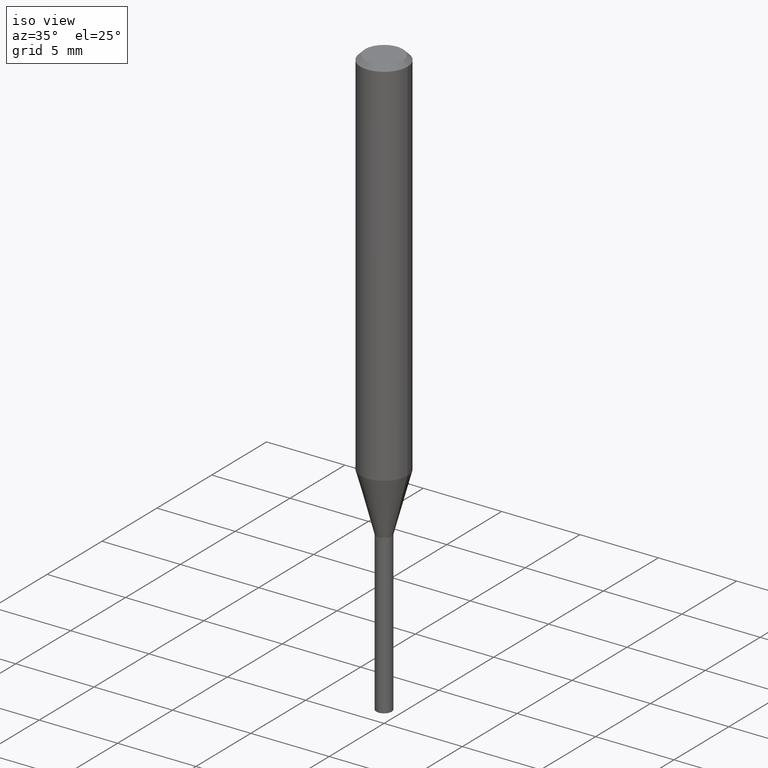
[diagram: clean part render]
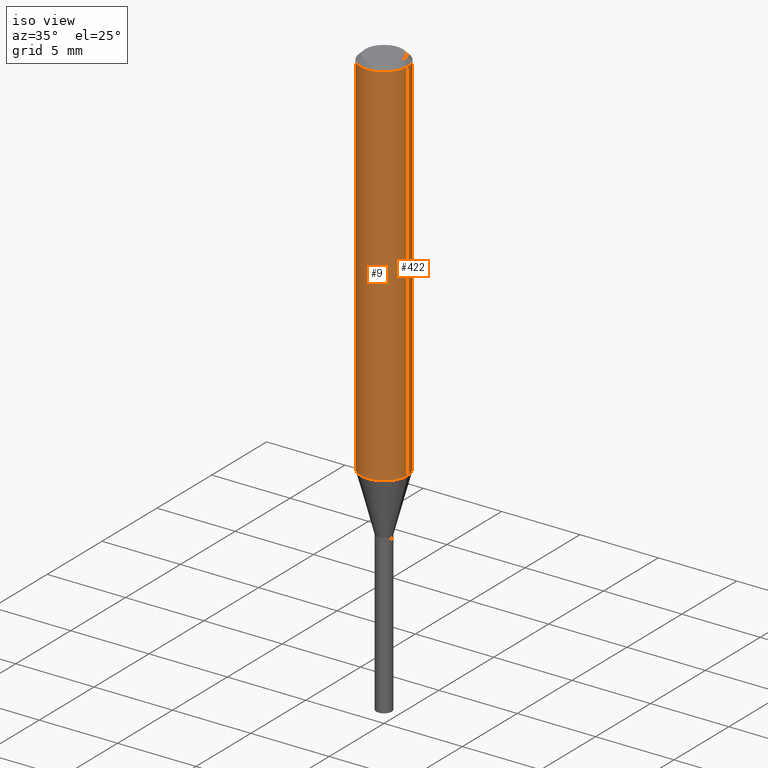
[diagram: same view with one multi-face feature highlighted, each face labeled with its STEP entity id]
A machine part, iso view. The highlighted faces form ONE feature: a constant-radius fillet chain: 2 tangent blend faces with common blend radius 1.4999 mm. The faces share edges in the B-rep.
Their STEP definitions:
[1] entity #422 (Cylinder):
#1 = VERTEX_POINT ( 'NONE', #330 ) ;
#25 = EDGE_CURVE ( 'NONE', #481, #386, #168, .T. ) ;
#40 = EDGE_CURVE ( 'NONE', #1, #348, #95, .T. ) ;
#47 = CARTESIAN_POINT ( 'NONE',  ( -0.05904999999999999832, -1.242650661852750737E-15, -0.01181000000000006871 ) ) ;
#52 = CARTESIAN_POINT ( 'NONE',  ( 2.888098660104663328E-31, -4.123439461173779030E-17, -0.01181000000000006871 ) ) ;
#87 = CYLINDRICAL_SURFACE ( 'NONE', #355, 0.05905000000000005383 ) ;
#95 = CIRCLE ( 'NONE', #421, 0.05905000000000010935 ) ;
#101 = FACE_OUTER_BOUND ( 'NONE', #268, .T. ) ;
#112 = DIRECTION ( 'NONE',  ( -2.445468806185136597E-29, 3.491481338843145583E-15, 1.000000000000000000 ) ) ;
#114 = ORIENTED_EDGE ( 'NONE', *, *, #179, .F. ) ;
#125 = CARTESIAN_POINT ( 'NONE',  ( 0.05904999999999999832, -4.535783407291118600E-16, -0.01181000000000006871 ) ) ;
#140 = CARTESIAN_POINT ( 'NONE',  ( -0.05905000000000010241, -2.863642414560104027E-15, -0.9403509803991370042 ) ) ;
#151 = DIRECTION ( 'NONE',  ( -2.445468806185136877E-29, 3.491481338843145188E-15, 1.000000000000000000 ) ) ;
#157 = ORIENTED_EDGE ( 'NONE', *, *, #25, .F. ) ;
#168 = CIRCLE ( 'NONE', #256, 0.05904999999999999832 ) ;
#179 = EDGE_CURVE ( 'NONE', #1, #481, #336, .T. ) ;
#183 = CARTESIAN_POINT ( 'NONE',  ( 2.299598989431700529E-29, -3.283217900026443125E-15, -0.9403509803991370042 ) ) ;
#207 = ORIENTED_EDGE ( 'NONE', *, *, #40, .T. ) ;
#215 = DIRECTION ( 'NONE',  ( -2.445468806185136597E-29, 3.491481338843145583E-15, 1.000000000000000000 ) ) ;
#231 = EDGE_CURVE ( 'NONE', #348, #386, #324, .T. ) ;
#253 = DIRECTION ( 'NONE',  ( -2.445468806185136877E-29, 3.491481338843145188E-15, 1.000000000000000000 ) ) ;
#256 = AXIS2_PLACEMENT_3D ( 'NONE', #52, #215, #392 ) ;
#265 = ORIENTED_EDGE ( 'NONE', *, *, #231, .T. ) ;
#268 = EDGE_LOOP ( 'NONE', ( #207, #265, #157, #114 ) ) ;
#280 = DIRECTION ( 'NONE',  ( -2.445468806185136597E-29, 3.491481338843145583E-15, 1.000000000000000000 ) ) ;
#298 = CARTESIAN_POINT ( 'NONE',  ( 0.05905000000000005383, -4.123439461173744271E-16, 2.879382386107502672E-30 ) ) ;
#324 = LINE ( 'NONE', #431, #332 ) ;
#325 = CARTESIAN_POINT ( 'NONE',  ( 0.000000000000000000, 0.000000000000000000, 0.000000000000000000 ) ) ;
#330 = CARTESIAN_POINT ( 'NONE',  ( 0.05905000000000010241, -3.695561846143818440E-15, -0.9403509803991370042 ) ) ;
#332 = VECTOR ( 'NONE', #253, 39.37007874015748143 ) ;
#336 = LINE ( 'NONE', #298, #354 ) ;
#348 = VERTEX_POINT ( 'NONE', #140 ) ;
#354 = VECTOR ( 'NONE', #151, 39.37007874015748143 ) ;
#355 = AXIS2_PLACEMENT_3D ( 'NONE', #325, #280, #433 ) ;
#386 = VERTEX_POINT ( 'NONE', #47 ) ;
#392 = DIRECTION ( 'NONE',  ( 1.000000000000000000, -6.982962677686266711E-15, 0.000000000000000000 ) ) ;
#421 = AXIS2_PLACEMENT_3D ( 'NONE', #183, #112, #475 ) ;
#422 = ADVANCED_FACE ( 'NONE', ( #101 ), #87, .T. ) ;
#431 = CARTESIAN_POINT ( 'NONE',  ( -0.05905000000000005383, 4.195754854663395423E-16, -2.904631170795524694E-30 ) ) ;
#433 = DIRECTION ( 'NONE',  ( 1.000000000000000000, -6.982962677686266711E-15, 4.876176775795935793E-29 ) ) ;
#475 = DIRECTION ( 'NONE',  ( 1.000000000000000000, -6.982962677686267499E-15, 0.000000000000000000 ) ) ;
#481 = VERTEX_POINT ( 'NONE', #125 ) ;
[2] entity #9 (Cylinder):
#1 = VERTEX_POINT ( 'NONE', #330 ) ;
#9 = ADVANCED_FACE ( 'NONE', ( #274 ), #100, .T. ) ;
#44 = CARTESIAN_POINT ( 'NONE',  ( 0.000000000000000000, 0.000000000000000000, 0.000000000000000000 ) ) ;
#47 = CARTESIAN_POINT ( 'NONE',  ( -0.05904999999999999832, -1.242650661852750737E-15, -0.01181000000000006871 ) ) ;
#58 = CARTESIAN_POINT ( 'NONE',  ( 2.299598989431700529E-29, -3.283217900026443125E-15, -0.9403509803991370042 ) ) ;
#62 = AXIS2_PLACEMENT_3D ( 'NONE', #224, #407, #65 ) ;
#65 = DIRECTION ( 'NONE',  ( 1.000000000000000000, -6.982962677686266711E-15, 0.000000000000000000 ) ) ;
#100 = CYLINDRICAL_SURFACE ( 'NONE', #414, 0.05905000000000005383 ) ;
#117 = ORIENTED_EDGE ( 'NONE', *, *, #231, .F. ) ;
#125 = CARTESIAN_POINT ( 'NONE',  ( 0.05904999999999999832, -4.535783407291118600E-16, -0.01181000000000006871 ) ) ;
#132 = DIRECTION ( 'NONE',  ( 1.000000000000000000, -6.982962677686266711E-15, 4.876176775795935793E-29 ) ) ;
#136 = EDGE_CURVE ( 'NONE', #386, #481, #154, .T. ) ;
#140 = CARTESIAN_POINT ( 'NONE',  ( -0.05905000000000010241, -2.863642414560104027E-15, -0.9403509803991370042 ) ) ;
#151 = DIRECTION ( 'NONE',  ( -2.445468806185136877E-29, 3.491481338843145188E-15, 1.000000000000000000 ) ) ;
#154 = CIRCLE ( 'NONE', #62, 0.05904999999999999832 ) ;
#167 = ORIENTED_EDGE ( 'NONE', *, *, #136, .F. ) ;
#179 = EDGE_CURVE ( 'NONE', #1, #481, #336, .T. ) ;
#209 = ORIENTED_EDGE ( 'NONE', *, *, #480, .T. ) ;
#210 = DIRECTION ( 'NONE',  ( 1.000000000000000000, -6.982962677686267499E-15, 0.000000000000000000 ) ) ;
#214 = CIRCLE ( 'NONE', #442, 0.05905000000000010935 ) ;
#224 = CARTESIAN_POINT ( 'NONE',  ( 2.888098660104663328E-31, -4.123439461173779030E-17, -0.01181000000000006871 ) ) ;
#231 = EDGE_CURVE ( 'NONE', #348, #386, #324, .T. ) ;
#253 = DIRECTION ( 'NONE',  ( -2.445468806185136877E-29, 3.491481338843145188E-15, 1.000000000000000000 ) ) ;
#274 = FACE_OUTER_BOUND ( 'NONE', #363, .T. ) ;
#298 = CARTESIAN_POINT ( 'NONE',  ( 0.05905000000000005383, -4.123439461173744271E-16, 2.879382386107502672E-30 ) ) ;
#324 = LINE ( 'NONE', #431, #332 ) ;
#330 = CARTESIAN_POINT ( 'NONE',  ( 0.05905000000000010241, -3.695561846143818440E-15, -0.9403509803991370042 ) ) ;
#332 = VECTOR ( 'NONE', #253, 39.37007874015748143 ) ;
#336 = LINE ( 'NONE', #298, #354 ) ;
#348 = VERTEX_POINT ( 'NONE', #140 ) ;
#354 = VECTOR ( 'NONE', #151, 39.37007874015748143 ) ;
#363 = EDGE_LOOP ( 'NONE', ( #117, #209, #447, #167 ) ) ;
#386 = VERTEX_POINT ( 'NONE', #47 ) ;
#407 = DIRECTION ( 'NONE',  ( -2.445468806185136597E-29, 3.491481338843145583E-15, 1.000000000000000000 ) ) ;
#414 = AXIS2_PLACEMENT_3D ( 'NONE', #44, #462, #132 ) ;
#431 = CARTESIAN_POINT ( 'NONE',  ( -0.05905000000000005383, 4.195754854663395423E-16, -2.904631170795524694E-30 ) ) ;
#442 = AXIS2_PLACEMENT_3D ( 'NONE', #58, #468, #210 ) ;
#447 = ORIENTED_EDGE ( 'NONE', *, *, #179, .T. ) ;
#462 = DIRECTION ( 'NONE',  ( -2.445468806185136597E-29, 3.491481338843145583E-15, 1.000000000000000000 ) ) ;
#468 = DIRECTION ( 'NONE',  ( -2.445468806185136597E-29, 3.491481338843145583E-15, 1.000000000000000000 ) ) ;
#480 = EDGE_CURVE ( 'NONE', #348, #1, #214, .T. ) ;
#481 = VERTEX_POINT ( 'NONE', #125 ) ;